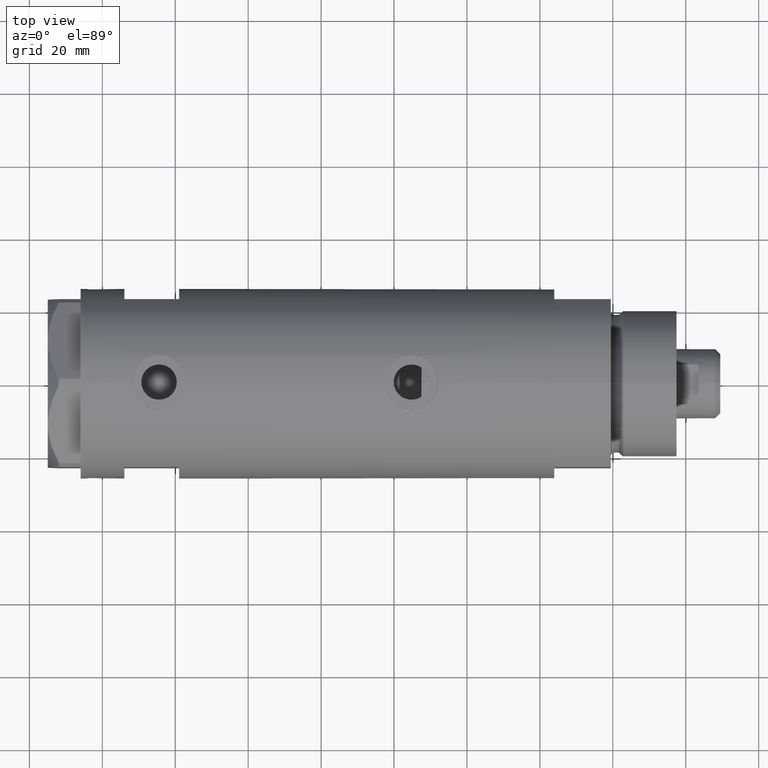
[diagram: clean part render]
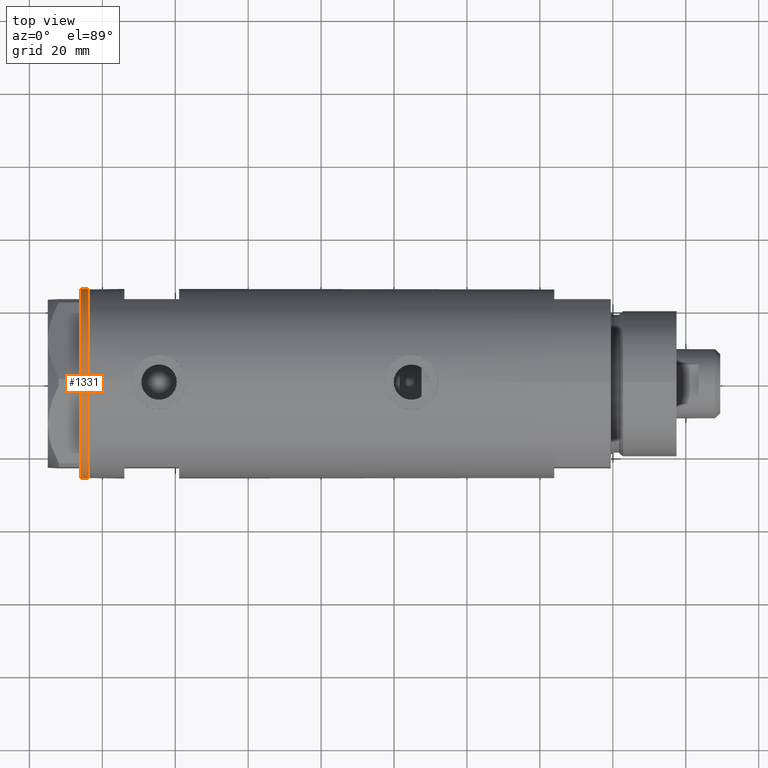
[diagram: same view with one face highlighted and labeled with its STEP entity id]
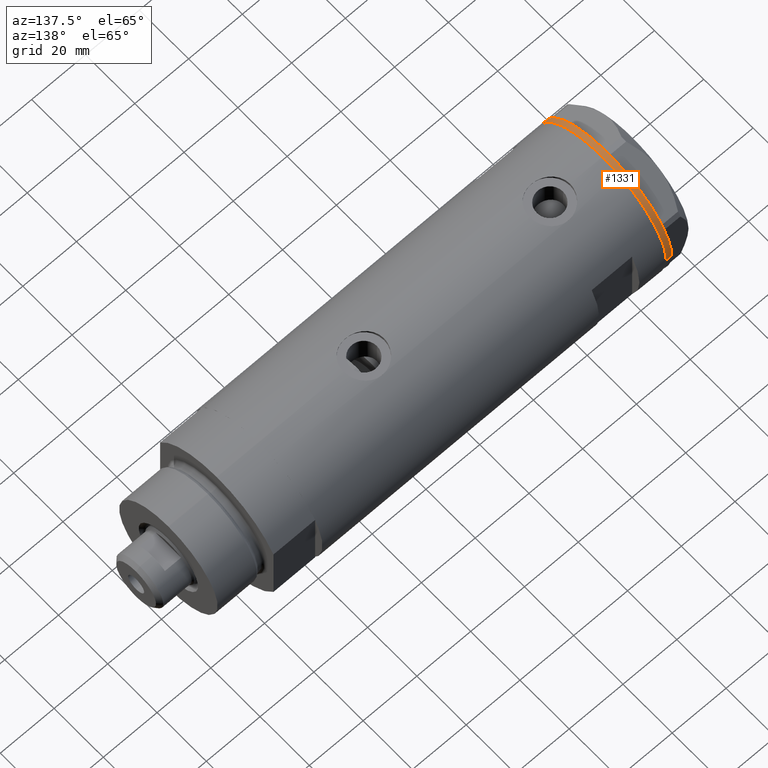
[diagram: same view with one face highlighted and labeled with its STEP entity id]
A machine part, top view. The second image highlights one B-rep face of the part: STEP entity #1331.
A second angle (auxiliary view) of the same face is appended — the face is thin or edge-on in the first view.
In plain terms, the highlighted cylindrical surface (partial cylindrical patch) has radius 26 mm, axis along (-1, -0, 0).
Its self-contained STEP definition (entity closure, byte-faithful):
#6 = CARTESIAN_POINT ( 'NONE',  ( -26.00000000000000355, 3.184081677783118585E-15, -2.000000000000000000 ) ) ;
#102 = VERTEX_POINT ( 'NONE', #2210 ) ;
#125 = FACE_OUTER_BOUND ( 'NONE', #2232, .T. ) ;
#164 = CARTESIAN_POINT ( 'NONE',  ( 0.3132930502243174709, -25.99811238272273428, 0.000000000000000000 ) ) ;
#201 = B_SPLINE_CURVE_WITH_KNOTS ( 'NONE', 3,
 ( #164, #4774, #375, #1692 ),
 .UNSPECIFIED., .F., .F.,
 ( 4, 4 ),
 ( 0.000000000000000000, 1.000000000000000000 ),
 .UNSPECIFIED. ) ;
#218 = AXIS2_PLACEMENT_3D ( 'NONE', #4185, #3752, #4449 ) ;
#246 = CARTESIAN_POINT ( 'NONE',  ( 22.00000000000017053, -13.85640646055075464, 0.000000000000000000 ) ) ;
#255 = EDGE_CURVE ( 'NONE', #769, #3737, #672, .T. ) ;
#375 = CARTESIAN_POINT ( 'NONE',  ( -0.1044411259762646482, -26.00062917530481243, 0.000000000000000000 ) ) ;
#387 = EDGE_CURVE ( 'NONE', #102, #4154, #4061, .T. ) ;
#554 = DIRECTION ( 'NONE',  ( 0.000000000000000000, 0.000000000000000000, -1.000000000000000000 ) ) ;
#587 = DIRECTION ( 'NONE',  ( 0.000000000000000000, 0.000000000000000000, -1.000000000000000000 ) ) ;
#637 = ORIENTED_EDGE ( 'NONE', *, *, #2219, .T. ) ;
#642 = ORIENTED_EDGE ( 'NONE', *, *, #4801, .T. ) ;
#656 = DIRECTION ( 'NONE',  ( -0.000000000000000000, -0.000000000000000000, 1.000000000000000000 ) ) ;
#672 = B_SPLINE_CURVE_WITH_KNOTS ( 'NONE', 3,
 ( #4653, #1282, #2782, #2261 ),
 .UNSPECIFIED., .F., .F.,
 ( 4, 4 ),
 ( 0.000000000000000000, 1.000000000000000000 ),
 .UNSPECIFIED. ) ;
#713 = CARTESIAN_POINT ( 'NONE',  ( 22.35837924876884131, -13.27037593168418717, 0.000000000000000000 ) ) ;
#769 = VERTEX_POINT ( 'NONE', #4784 ) ;
#796 = VERTEX_POINT ( 'NONE', #713 ) ;
#852 = DIRECTION ( 'NONE',  ( -0.000000000000000000, -0.000000000000000000, 1.000000000000000000 ) ) ;
#876 = ORIENTED_EDGE ( 'NONE', *, *, #1470, .T. ) ;
#902 = CARTESIAN_POINT ( 'NONE',  ( 0.000000000000000000, 0.000000000000000000, 0.000000000000000000 ) ) ;
#962 = DIRECTION ( 'NONE',  ( 0.000000000000000000, 0.000000000000000000, -1.000000000000000000 ) ) ;
#1020 = EDGE_CURVE ( 'NONE', #4431, #2072, #201, .T. ) ;
#1025 = ORIENTED_EDGE ( 'NONE', *, *, #255, .T. ) ;
#1092 = AXIS2_PLACEMENT_3D ( 'NONE', #4417, #3475, #4221 ) ;
#1178 = EDGE_CURVE ( 'NONE', #4495, #4431, #1548, .T. ) ;
#1219 = LINE ( 'NONE', #1526, #2572 ) ;
#1238 = CARTESIAN_POINT ( 'NONE',  ( 22.46498481720470863, -13.09076325594764079, 0.000000000000000000 ) ) ;
#1282 = CARTESIAN_POINT ( 'NONE',  ( -22.46498481720448481, -13.09076325594801915, 0.000000000000000000 ) ) ;
#1298 = EDGE_CURVE ( 'NONE', #4154, #4454, #1219, .T. ) ;
#1313 = CARTESIAN_POINT ( 'NONE',  ( 0.000000000000000000, 0.000000000000000000, 0.000000000000000000 ) ) ;
#1331 = ADVANCED_FACE ( 'NONE', ( #125 ), #2771, .T. ) ;
#1392 = AXIS2_PLACEMENT_3D ( 'NONE', #1709, #4752, #1776 ) ;
#1397 = EDGE_CURVE ( 'NONE', #102, #3897, #4049, .T. ) ;
#1458 = ORIENTED_EDGE ( 'NONE', *, *, #2071, .T. ) ;
#1470 = EDGE_CURVE ( 'NONE', #1837, #3240, #1784, .T. ) ;
#1476 = DIRECTION ( 'NONE',  ( 0.000000000000000000, 0.000000000000000000, -1.000000000000000000 ) ) ;
#1526 = CARTESIAN_POINT ( 'NONE',  ( -26.00000000000000355, 3.184081677783118585E-15, -2.000000000000000000 ) ) ;
#1548 = CIRCLE ( 'NONE', #2494, 26.00000000000000355 ) ;
#1692 = CARTESIAN_POINT ( 'NONE',  ( -0.3132930502238524539, -25.99811238272274139, 0.000000000000000000 ) ) ;
#1709 = CARTESIAN_POINT ( 'NONE',  ( 0.000000000000000000, 0.000000000000000000, 0.000000000000000000 ) ) ;
#1724 = DIRECTION ( 'NONE',  ( -0.000000000000000000, -0.000000000000000000, 1.000000000000000000 ) ) ;
#1776 = DIRECTION ( 'NONE',  ( -1.000000000000000000, 0.000000000000000000, 0.000000000000000000 ) ) ;
#1784 = CIRCLE ( 'NONE', #1392, 26.00000000000000355 ) ;
#1800 = CARTESIAN_POINT ( 'NONE',  ( 0.000000000000000000, 0.000000000000000000, 0.000000000000000000 ) ) ;
#1837 = VERTEX_POINT ( 'NONE', #4020 ) ;
#2010 = CARTESIAN_POINT ( 'NONE',  ( 0.3132930502243174709, -25.99811238272273428, 0.000000000000000000 ) ) ;
#2037 = AXIS2_PLACEMENT_3D ( 'NONE', #3924, #2793, #2816 ) ;
#2059 = DIRECTION ( 'NONE',  ( -1.000000000000000000, 0.000000000000000000, 0.000000000000000000 ) ) ;
#2071 = EDGE_CURVE ( 'NONE', #3741, #4006, #3602, .T. ) ;
#2072 = VERTEX_POINT ( 'NONE', #3623 ) ;
#2075 = ORIENTED_EDGE ( 'NONE', *, *, #4795, .T. ) ;
#2081 = EDGE_CURVE ( 'NONE', #4458, #4495, #2497, .T. ) ;
#2108 = DIRECTION ( 'NONE',  ( -1.000000000000000000, 0.000000000000000000, 0.000000000000000000 ) ) ;
#2121 = AXIS2_PLACEMENT_3D ( 'NONE', #4657, #587, #3894 ) ;
#2168 = DIRECTION ( 'NONE',  ( -1.000000000000000000, 0.000000000000000000, 0.000000000000000000 ) ) ;
#2191 = AXIS2_PLACEMENT_3D ( 'NONE', #902, #962, #4609 ) ;
#2210 = CARTESIAN_POINT ( 'NONE',  ( 26.00000000000000355, 0.000000000000000000, -2.000000000000000000 ) ) ;
#2219 = EDGE_CURVE ( 'NONE', #3897, #3741, #3369, .T. ) ;
#2221 = DIRECTION ( 'NONE',  ( 0.000000000000000000, 0.000000000000000000, -1.000000000000000000 ) ) ;
#2232 = EDGE_LOOP ( 'NONE', ( #4448, #4646, #2741, #637, #1458, #642, #2787, #4024, #3000, #3108, #2959, #876, #3590, #1025, #2075, #3285 ) ) ;
#2261 = CARTESIAN_POINT ( 'NONE',  ( -22.67167229899264669, -12.72773645103832507, 0.000000000000000000 ) ) ;
#2430 = CIRCLE ( 'NONE', #218, 26.00000000000000355 ) ;
#2456 = CARTESIAN_POINT ( 'NONE',  ( 0.000000000000000000, 0.000000000000000000, -2.000000000000000000 ) ) ;
#2457 = CARTESIAN_POINT ( 'NONE',  ( -22.67167229899264669, -12.72773645103832507, 0.000000000000000000 ) ) ;
#2459 = CARTESIAN_POINT ( 'NONE',  ( 22.35837924876884131, -13.27037593168418717, 0.000000000000000000 ) ) ;
#2494 = AXIS2_PLACEMENT_3D ( 'NONE', #1800, #2221, #4800 ) ;
#2497 = CIRCLE ( 'NONE', #2037, 26.00000000000000355 ) ;
#2572 = VECTOR ( 'NONE', #852, 1000.000000000000000 ) ;
#2582 = AXIS2_PLACEMENT_3D ( 'NONE', #3381, #4516, #2168 ) ;
#2663 = AXIS2_PLACEMENT_3D ( 'NONE', #4844, #1476, #4456 ) ;
#2741 = ORIENTED_EDGE ( 'NONE', *, *, #1397, .T. ) ;
#2771 = CYLINDRICAL_SURFACE ( 'NONE', #3356, 26.00000000000000355 ) ;
#2782 = CARTESIAN_POINT ( 'NONE',  ( -22.56942594318098116, -12.90986591935703665, 0.000000000000000000 ) ) ;
#2787 = ORIENTED_EDGE ( 'NONE', *, *, #3001, .T. ) ;
#2793 = DIRECTION ( 'NONE',  ( 0.000000000000000000, 0.000000000000000000, -1.000000000000000000 ) ) ;
#2801 = DIRECTION ( 'NONE',  ( 0.000000000000000000, 0.000000000000000000, -1.000000000000000000 ) ) ;
#2816 = DIRECTION ( 'NONE',  ( -1.000000000000000000, 0.000000000000000000, 0.000000000000000000 ) ) ;
#2959 = ORIENTED_EDGE ( 'NONE', *, *, #3880, .T. ) ;
#3000 = ORIENTED_EDGE ( 'NONE', *, *, #1178, .T. ) ;
#3001 = EDGE_CURVE ( 'NONE', #796, #4458, #4330, .T. ) ;
#3108 = ORIENTED_EDGE ( 'NONE', *, *, #1020, .T. ) ;
#3149 = CARTESIAN_POINT ( 'NONE',  ( 22.56942594318113748, -12.90986591935675065, 0.000000000000000000 ) ) ;
#3240 = VERTEX_POINT ( 'NONE', #4088 ) ;
#3285 = ORIENTED_EDGE ( 'NONE', *, *, #4641, .T. ) ;
#3356 = AXIS2_PLACEMENT_3D ( 'NONE', #4173, #1724, #3985 ) ;
#3369 = CIRCLE ( 'NONE', #2663, 26.00000000000000355 ) ;
#3381 = CARTESIAN_POINT ( 'NONE',  ( 0.000000000000000000, 0.000000000000000000, 0.000000000000000000 ) ) ;
#3435 = CARTESIAN_POINT ( 'NONE',  ( -22.99999999999990763, -12.12435565298232021, 0.000000000000000000 ) ) ;
#3475 = DIRECTION ( 'NONE',  ( 0.000000000000000000, 0.000000000000000000, -1.000000000000000000 ) ) ;
#3500 = CARTESIAN_POINT ( 'NONE',  ( 22.67167229899274616, -12.72773645103814211, 0.000000000000000000 ) ) ;
#3532 = VECTOR ( 'NONE', #656, 1000.000000000000000 ) ;
#3590 = ORIENTED_EDGE ( 'NONE', *, *, #4256, .T. ) ;
#3602 = CIRCLE ( 'NONE', #3992, 26.00000000000000355 ) ;
#3623 = CARTESIAN_POINT ( 'NONE',  ( -0.3132930502238524539, -25.99811238272274139, 0.000000000000000000 ) ) ;
#3647 = CARTESIAN_POINT ( 'NONE',  ( 1.000000000000106803, -25.98076211353316367, 0.000000000000000000 ) ) ;
#3737 = VERTEX_POINT ( 'NONE', #2457 ) ;
#3741 = VERTEX_POINT ( 'NONE', #3955 ) ;
#3752 = DIRECTION ( 'NONE',  ( 0.000000000000000000, 0.000000000000000000, -1.000000000000000000 ) ) ;
#3869 = VERTEX_POINT ( 'NONE', #3435 ) ;
#3880 = EDGE_CURVE ( 'NONE', #2072, #1837, #2430, .T. ) ;
#3894 = DIRECTION ( 'NONE',  ( -1.000000000000000000, 0.000000000000000000, 0.000000000000000000 ) ) ;
#3897 = VERTEX_POINT ( 'NONE', #4080 ) ;
#3924 = CARTESIAN_POINT ( 'NONE',  ( 0.000000000000000000, 0.000000000000000000, 0.000000000000000000 ) ) ;
#3955 = CARTESIAN_POINT ( 'NONE',  ( 23.00000000000007461, -12.12435565298200224, 0.000000000000000000 ) ) ;
#3985 = DIRECTION ( 'NONE',  ( 1.000000000000000000, 0.000000000000000000, 0.000000000000000000 ) ) ;
#3992 = AXIS2_PLACEMENT_3D ( 'NONE', #1313, #554, #2059 ) ;
#4006 = VERTEX_POINT ( 'NONE', #4734 ) ;
#4020 = CARTESIAN_POINT ( 'NONE',  ( -0.9999999999997406519, -25.98076211353317433, 0.000000000000000000 ) ) ;
#4024 = ORIENTED_EDGE ( 'NONE', *, *, #2081, .T. ) ;
#4042 = B_SPLINE_CURVE_WITH_KNOTS ( 'NONE', 3,
 ( #3500, #3149, #1238, #2459 ),
 .UNSPECIFIED., .F., .F.,
 ( 4, 4 ),
 ( 0.000000000000000000, 1.000000000000000000 ),
 .UNSPECIFIED. ) ;
#4049 = LINE ( 'NONE', #4809, #3532 ) ;
#4061 = CIRCLE ( 'NONE', #4142, 26.00000000000000355 ) ;
#4080 = CARTESIAN_POINT ( 'NONE',  ( 26.00000000000000355, 0.000000000000000000, 0.000000000000000000 ) ) ;
#4088 = CARTESIAN_POINT ( 'NONE',  ( -21.99999999999998224, -13.85640646055105485, 0.000000000000000000 ) ) ;
#4142 = AXIS2_PLACEMENT_3D ( 'NONE', #2456, #2801, #2108 ) ;
#4154 = VERTEX_POINT ( 'NONE', #6 ) ;
#4173 = CARTESIAN_POINT ( 'NONE',  ( 0.000000000000000000, 0.000000000000000000, -2.000000000000000000 ) ) ;
#4185 = CARTESIAN_POINT ( 'NONE',  ( 0.000000000000000000, 0.000000000000000000, 0.000000000000000000 ) ) ;
#4221 = DIRECTION ( 'NONE',  ( -1.000000000000000000, 0.000000000000000000, 0.000000000000000000 ) ) ;
#4256 = EDGE_CURVE ( 'NONE', #3240, #769, #4775, .T. ) ;
#4262 = CIRCLE ( 'NONE', #1092, 26.00000000000000355 ) ;
#4330 = CIRCLE ( 'NONE', #2191, 26.00000000000000355 ) ;
#4368 = CARTESIAN_POINT ( 'NONE',  ( -26.00000000000000355, 3.184081677783118585E-15, 0.000000000000000000 ) ) ;
#4417 = CARTESIAN_POINT ( 'NONE',  ( 0.000000000000000000, 0.000000000000000000, 0.000000000000000000 ) ) ;
#4431 = VERTEX_POINT ( 'NONE', #2010 ) ;
#4448 = ORIENTED_EDGE ( 'NONE', *, *, #1298, .F. ) ;
#4449 = DIRECTION ( 'NONE',  ( -1.000000000000000000, 0.000000000000000000, 0.000000000000000000 ) ) ;
#4454 = VERTEX_POINT ( 'NONE', #4368 ) ;
#4456 = DIRECTION ( 'NONE',  ( -1.000000000000000000, 0.000000000000000000, 0.000000000000000000 ) ) ;
#4458 = VERTEX_POINT ( 'NONE', #246 ) ;
#4495 = VERTEX_POINT ( 'NONE', #3647 ) ;
#4516 = DIRECTION ( 'NONE',  ( 0.000000000000000000, 0.000000000000000000, -1.000000000000000000 ) ) ;
#4609 = DIRECTION ( 'NONE',  ( -1.000000000000000000, 0.000000000000000000, 0.000000000000000000 ) ) ;
#4641 = EDGE_CURVE ( 'NONE', #3869, #4454, #4262, .T. ) ;
#4646 = ORIENTED_EDGE ( 'NONE', *, *, #387, .F. ) ;
#4653 = CARTESIAN_POINT ( 'NONE',  ( -22.35837924876856064, -13.27037593168466501, 0.000000000000000000 ) ) ;
#4657 = CARTESIAN_POINT ( 'NONE',  ( 0.000000000000000000, 0.000000000000000000, 0.000000000000000000 ) ) ;
#4734 = CARTESIAN_POINT ( 'NONE',  ( 22.67167229899274616, -12.72773645103814211, 0.000000000000000000 ) ) ;
#4752 = DIRECTION ( 'NONE',  ( 0.000000000000000000, 0.000000000000000000, -1.000000000000000000 ) ) ;
#4774 = CARTESIAN_POINT ( 'NONE',  ( 0.1044411259767168837, -26.00062917530480888, 0.000000000000000000 ) ) ;
#4775 = CIRCLE ( 'NONE', #2582, 26.00000000000000355 ) ;
#4780 = CIRCLE ( 'NONE', #2121, 26.00000000000000355 ) ;
#4784 = CARTESIAN_POINT ( 'NONE',  ( -22.35837924876856064, -13.27037593168466501, 0.000000000000000000 ) ) ;
#4795 = EDGE_CURVE ( 'NONE', #3737, #3869, #4780, .T. ) ;
#4800 = DIRECTION ( 'NONE',  ( -1.000000000000000000, 0.000000000000000000, 0.000000000000000000 ) ) ;
#4801 = EDGE_CURVE ( 'NONE', #4006, #796, #4042, .T. ) ;
#4809 = CARTESIAN_POINT ( 'NONE',  ( 26.00000000000000355, 0.000000000000000000, -2.000000000000000000 ) ) ;
#4844 = CARTESIAN_POINT ( 'NONE',  ( 0.000000000000000000, 0.000000000000000000, 0.000000000000000000 ) ) ;